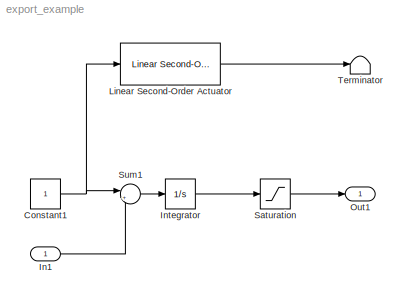
MODEL export_example
KIND model
BLOCK [Constant] Constant1
  SID = 22
BLOCK [Inport] In1
  IconDisplay = Port number
  SID = 21
BLOCK [Integrator] Integrator
  Ports = [1, 1]
  SID = 23
BLOCK [Reference] Linear Second-Order Actuator  REF=aerolibactuator/Linear Second-Order Actuator
  Ports = [1, 1]
  SID = 38
  SourceBlock = aerolibactuator/Linear Second-Order Actuator
  SourceType = LinearSecondOrderActuator
  fin_act_0 = 0
  fin_act_vel = 0
  wn_fin = 1
  z_fin = 0.3
BLOCK [Outport] Out1
  IconDisplay = Port number
  SID = 27
BLOCK [Saturate] Saturation
  InputPortMap = u0
  LowerLimit = 0
  Ports = [1, 1]
  SID = 24
  UpperLimit = 5
BLOCK [Sum] Sum1
  IconShape = round
  InputSameDT = off
  Inputs = |++
  OutDataTypeStr = Inherit: Inherit via internal rule
  Ports = [2, 1]
  SID = 26
  SaturateOnIntegerOverflow = off
BLOCK [Terminator] Terminator
  SID = 41
NET Constant1:1 -> Linear Second-Order Actuator:1, Sum1:1
LINE In1:1 -> Sum1:2
LINE Integrator:1 -> Saturation:1
LINE Linear Second-Order Actuator:1 -> Terminator:1
LINE Saturation:1 -> Out1:1
LINE Sum1:1 -> Integrator:1
note: NET lines group one-source signal fan-out (src -> all destinations, sorted); 1:1 wires keep LINE
